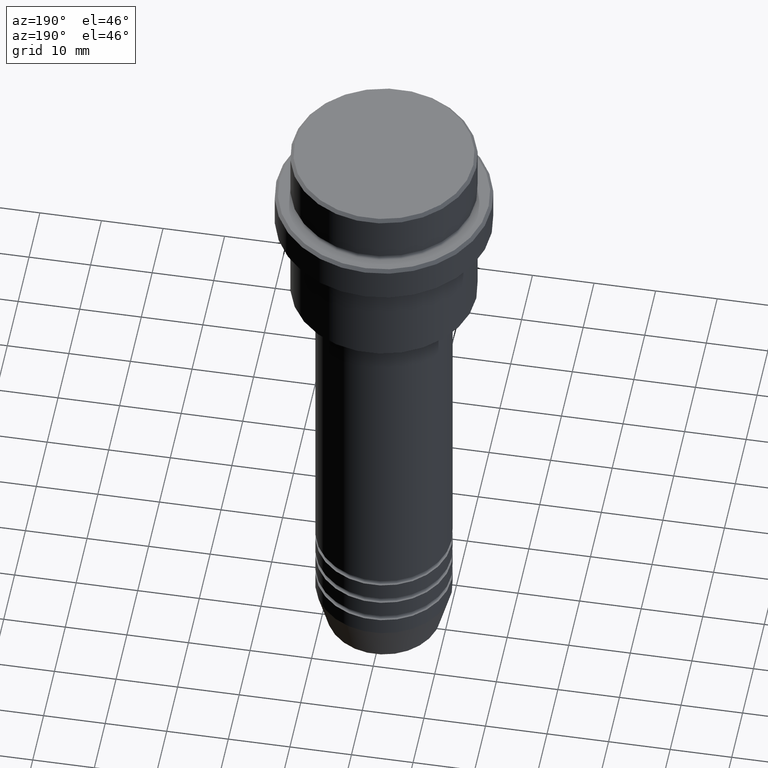
[diagram: clean part render]
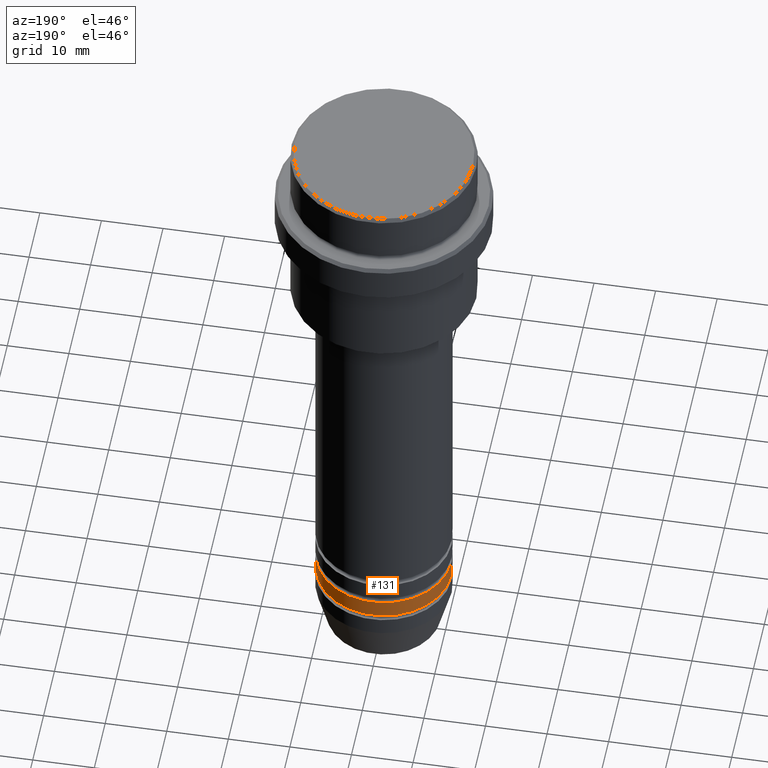
[diagram: same view with one face highlighted and labeled with its STEP entity id]
A machine part, auxiliary view. The second image highlights one B-rep face of the part: STEP entity #131.
In plain terms, the highlighted cylindrical surface (partial cylindrical patch) has radius 11 mm, axis along (-0, -0, 1).
Its self-contained STEP definition (entity closure, byte-faithful):
#51 = CARTESIAN_POINT ( 'NONE',  ( 0.000000000000000000, 0.000000000000000000, -91.99999999999988631 ) ) ;
#63 = VERTEX_POINT ( 'NONE', #565 ) ;
#131 = ADVANCED_FACE ( 'NONE', ( #1321 ), #643, .T. ) ;
#134 = CARTESIAN_POINT ( 'NONE',  ( -11.00000000000000000, 1.347111479062088405E-15, 0.000000000000000000 ) ) ;
#145 = LINE ( 'NONE', #134, #1271 ) ;
#161 = ORIENTED_EDGE ( 'NONE', *, *, #816, .F. ) ;
#172 = DIRECTION ( 'NONE',  ( -0.000000000000000000, -0.000000000000000000, 1.000000000000000000 ) ) ;
#232 = DIRECTION ( 'NONE',  ( 1.000000000000000000, 0.000000000000000000, 0.000000000000000000 ) ) ;
#322 = EDGE_LOOP ( 'NONE', ( #888, #1055, #161, #1021 ) ) ;
#419 = LINE ( 'NONE', #517, #1181 ) ;
#442 = CIRCLE ( 'NONE', #539, 11.00000000000000000 ) ;
#517 = CARTESIAN_POINT ( 'NONE',  ( 11.00000000000000000, 0.000000000000000000, 0.000000000000000000 ) ) ;
#532 = CARTESIAN_POINT ( 'NONE',  ( 11.00000000000000000, 0.000000000000000000, -94.99999999999988631 ) ) ;
#539 = AXIS2_PLACEMENT_3D ( 'NONE', #802, #917, #1157 ) ;
#565 = CARTESIAN_POINT ( 'NONE',  ( -11.00000000000000000, 1.347111479062088405E-15, -91.99999999999988631 ) ) ;
#643 = CYLINDRICAL_SURFACE ( 'NONE', #715, 11.00000000000000000 ) ;
#664 = EDGE_CURVE ( 'NONE', #921, #1167, #442, .T. ) ;
#715 = AXIS2_PLACEMENT_3D ( 'NONE', #1301, #1219, #232 ) ;
#738 = DIRECTION ( 'NONE',  ( -0.000000000000000000, -0.000000000000000000, 1.000000000000000000 ) ) ;
#802 = CARTESIAN_POINT ( 'NONE',  ( 0.000000000000000000, 0.000000000000000000, -94.99999999999988631 ) ) ;
#816 = EDGE_CURVE ( 'NONE', #1233, #63, #1402, .T. ) ;
#888 = ORIENTED_EDGE ( 'NONE', *, *, #664, .T. ) ;
#917 = DIRECTION ( 'NONE',  ( -0.000000000000000000, -0.000000000000000000, 1.000000000000000000 ) ) ;
#921 = VERTEX_POINT ( 'NONE', #532 ) ;
#1021 = ORIENTED_EDGE ( 'NONE', *, *, #1236, .F. ) ;
#1034 = DIRECTION ( 'NONE',  ( -0.000000000000000000, -0.000000000000000000, 1.000000000000000000 ) ) ;
#1055 = ORIENTED_EDGE ( 'NONE', *, *, #1123, .T. ) ;
#1057 = CARTESIAN_POINT ( 'NONE',  ( -11.00000000000000000, 1.347111479062088405E-15, -94.99999999999988631 ) ) ;
#1123 = EDGE_CURVE ( 'NONE', #1167, #63, #145, .T. ) ;
#1157 = DIRECTION ( 'NONE',  ( 1.000000000000000000, 0.000000000000000000, 0.000000000000000000 ) ) ;
#1167 = VERTEX_POINT ( 'NONE', #1057 ) ;
#1181 = VECTOR ( 'NONE', #172, 1000.000000000000000 ) ;
#1194 = CARTESIAN_POINT ( 'NONE',  ( 11.00000000000000000, 0.000000000000000000, -91.99999999999988631 ) ) ;
#1219 = DIRECTION ( 'NONE',  ( -0.000000000000000000, -0.000000000000000000, 1.000000000000000000 ) ) ;
#1233 = VERTEX_POINT ( 'NONE', #1194 ) ;
#1236 = EDGE_CURVE ( 'NONE', #921, #1233, #419, .T. ) ;
#1269 = AXIS2_PLACEMENT_3D ( 'NONE', #51, #738, #1291 ) ;
#1271 = VECTOR ( 'NONE', #1034, 1000.000000000000000 ) ;
#1291 = DIRECTION ( 'NONE',  ( 1.000000000000000000, 0.000000000000000000, 0.000000000000000000 ) ) ;
#1301 = CARTESIAN_POINT ( 'NONE',  ( 0.000000000000000000, 0.000000000000000000, 0.000000000000000000 ) ) ;
#1321 = FACE_OUTER_BOUND ( 'NONE', #322, .T. ) ;
#1402 = CIRCLE ( 'NONE', #1269, 11.00000000000000000 ) ;